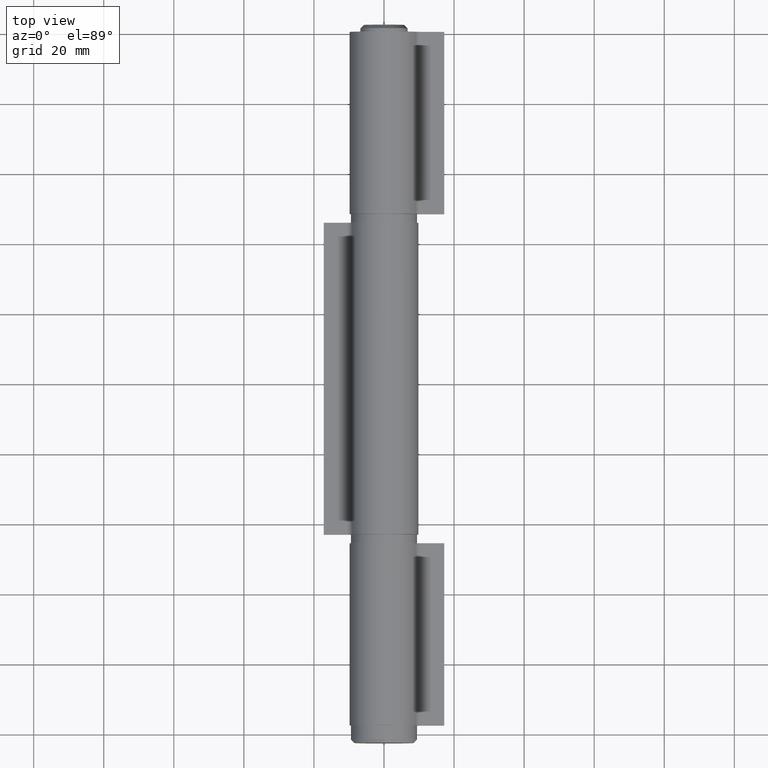
[diagram: clean part render]
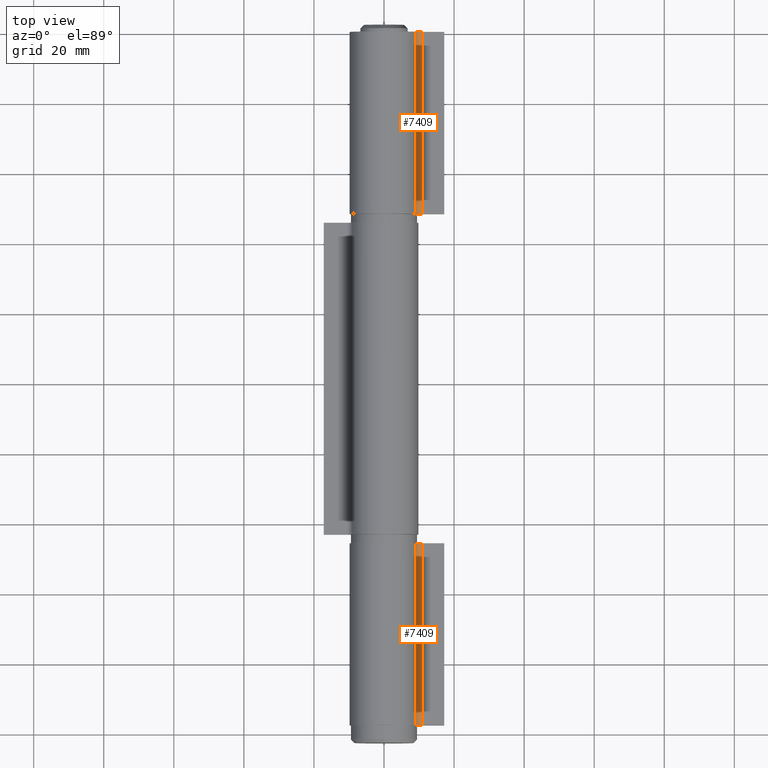
[diagram: same view with one multi-face feature highlighted, each face labeled with its STEP entity id]
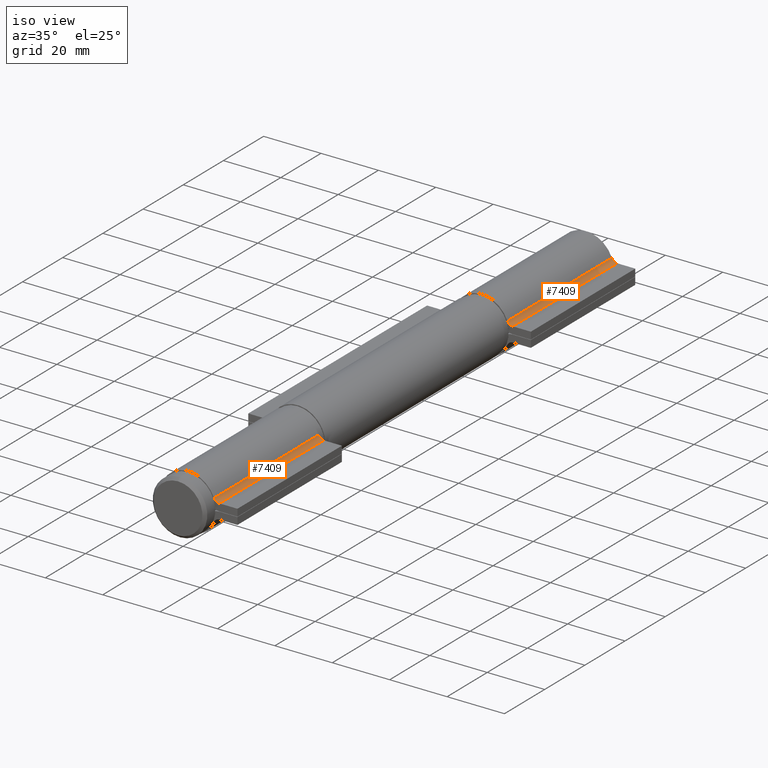
[diagram: same view with one multi-face feature highlighted, each face labeled with its STEP entity id]
A machine part, top view. The highlighted faces form ONE feature: a constant-radius fillet chain: 2 tangent blend faces with common blend radius 2 mm. The faces share edges in the B-rep.
A second angle (iso view) of the same feature is appended — it is thin or edge-on in the first view.
Their STEP definitions:
[1] entity #7409 (Cylinder):
#447 = CARTESIAN_POINT ( 'NONE',  ( 2.550000000000019806, 25.99999999999999645, -10.88749282433755639 ) ) ;
#592 = VECTOR ( 'NONE', #1459, 1000.000000000000000 ) ;
#665 = CARTESIAN_POINT ( 'NONE',  ( 4.550000000000039790, 25.99999999999999645, -10.88749282433755639 ) ) ;
#755 = DIRECTION ( 'NONE',  ( 0.000000000000000000, -1.000000000000000000, 0.000000000000000000 ) ) ;
#1276 = ORIENTED_EDGE ( 'NONE', *, *, #6496, .F. ) ;
#1459 = DIRECTION ( 'NONE',  ( 0.000000000000000000, -1.000000000000000000, 0.000000000000000000 ) ) ;
#1664 = EDGE_CURVE ( 'NONE', #2493, #4926, #12130, .T. ) ;
#1739 = CYLINDRICAL_SURFACE ( 'NONE', #6244, 2.000000000000020872 ) ;
#2493 = VERTEX_POINT ( 'NONE', #7216 ) ;
#2812 = ORIENTED_EDGE ( 'NONE', *, *, #6285, .T. ) ;
#2835 = ORIENTED_EDGE ( 'NONE', *, *, #11607, .F. ) ;
#3383 = VERTEX_POINT ( 'NONE', #6987 ) ;
#3668 = DIRECTION ( 'NONE',  ( 0.000000000000000000, 0.000000000000000000, -1.000000000000000000 ) ) ;
#3730 = VECTOR ( 'NONE', #5978, 1000.000000000000000 ) ;
#4179 = CIRCLE ( 'NONE', #7264, 2.000000000000020872 ) ;
#4193 = LINE ( 'NONE', #11679, #3730 ) ;
#4926 = VERTEX_POINT ( 'NONE', #7020 ) ;
#5050 = EDGE_LOOP ( 'NONE', ( #8351, #2835, #1276, #2812 ) ) ;
#5978 = DIRECTION ( 'NONE',  ( 0.000000000000000000, -1.000000000000000000, 0.000000000000000000 ) ) ;
#6186 = DIRECTION ( 'NONE',  ( 0.000000000000000000, -1.000000000000000000, 0.000000000000000000 ) ) ;
#6244 = AXIS2_PLACEMENT_3D ( 'NONE', #665, #6186, #8406 ) ;
#6285 = EDGE_CURVE ( 'NONE', #9916, #2493, #4193, .T. ) ;
#6341 = DIRECTION ( 'NONE',  ( 0.000000000000000000, -1.000000000000000000, 0.000000000000000000 ) ) ;
#6496 = EDGE_CURVE ( 'NONE', #9916, #3383, #4179, .T. ) ;
#6550 = AXIS2_PLACEMENT_3D ( 'NONE', #7510, #755, #3668 ) ;
#6894 = FACE_OUTER_BOUND ( 'NONE', #5050, .T. ) ;
#6987 = CARTESIAN_POINT ( 'NONE',  ( 2.550000000000019806, 25.99999999999999645, -10.88749282433755639 ) ) ;
#7020 = CARTESIAN_POINT ( 'NONE',  ( 2.550000000000019806, -25.99999999999999645, -10.88749282433755639 ) ) ;
#7216 = CARTESIAN_POINT ( 'NONE',  ( 3.778813559322075299, -25.99999999999999645, -9.042155057500695037 ) ) ;
#7264 = AXIS2_PLACEMENT_3D ( 'NONE', #11216, #6341, #12289 ) ;
#7384 = LINE ( 'NONE', #447, #592 ) ;
#7409 = ADVANCED_FACE ( 'NONE', ( #6894 ), #1739, .F. ) ;
#7510 = CARTESIAN_POINT ( 'NONE',  ( 4.550000000000039790, -25.99999999999999645, -10.88749282433755639 ) ) ;
#8351 = ORIENTED_EDGE ( 'NONE', *, *, #1664, .T. ) ;
#8406 = DIRECTION ( 'NONE',  ( 0.000000000000000000, 0.000000000000000000, -1.000000000000000000 ) ) ;
#9916 = VERTEX_POINT ( 'NONE', #10425 ) ;
#10425 = CARTESIAN_POINT ( 'NONE',  ( 3.778813559322075299, 25.99999999999999645, -9.042155057500695037 ) ) ;
#11216 = CARTESIAN_POINT ( 'NONE',  ( 4.550000000000039790, 25.99999999999999645, -10.88749282433755639 ) ) ;
#11607 = EDGE_CURVE ( 'NONE', #3383, #4926, #7384, .T. ) ;
#11679 = CARTESIAN_POINT ( 'NONE',  ( 3.778813559322075299, 25.99999999999999645, -9.042155057500695037 ) ) ;
#12130 = CIRCLE ( 'NONE', #6550, 2.000000000000020872 ) ;
#12289 = DIRECTION ( 'NONE',  ( 0.000000000000000000, 0.000000000000000000, -1.000000000000000000 ) ) ;
[2] entity #7409 (Cylinder):
#447 = CARTESIAN_POINT ( 'NONE',  ( 2.550000000000019806, 25.99999999999999645, -10.88749282433755639 ) ) ;
#592 = VECTOR ( 'NONE', #1459, 1000.000000000000000 ) ;
#665 = CARTESIAN_POINT ( 'NONE',  ( 4.550000000000039790, 25.99999999999999645, -10.88749282433755639 ) ) ;
#755 = DIRECTION ( 'NONE',  ( 0.000000000000000000, -1.000000000000000000, 0.000000000000000000 ) ) ;
#1276 = ORIENTED_EDGE ( 'NONE', *, *, #6496, .F. ) ;
#1459 = DIRECTION ( 'NONE',  ( 0.000000000000000000, -1.000000000000000000, 0.000000000000000000 ) ) ;
#1664 = EDGE_CURVE ( 'NONE', #2493, #4926, #12130, .T. ) ;
#1739 = CYLINDRICAL_SURFACE ( 'NONE', #6244, 2.000000000000020872 ) ;
#2493 = VERTEX_POINT ( 'NONE', #7216 ) ;
#2812 = ORIENTED_EDGE ( 'NONE', *, *, #6285, .T. ) ;
#2835 = ORIENTED_EDGE ( 'NONE', *, *, #11607, .F. ) ;
#3383 = VERTEX_POINT ( 'NONE', #6987 ) ;
#3668 = DIRECTION ( 'NONE',  ( 0.000000000000000000, 0.000000000000000000, -1.000000000000000000 ) ) ;
#3730 = VECTOR ( 'NONE', #5978, 1000.000000000000000 ) ;
#4179 = CIRCLE ( 'NONE', #7264, 2.000000000000020872 ) ;
#4193 = LINE ( 'NONE', #11679, #3730 ) ;
#4926 = VERTEX_POINT ( 'NONE', #7020 ) ;
#5050 = EDGE_LOOP ( 'NONE', ( #8351, #2835, #1276, #2812 ) ) ;
#5978 = DIRECTION ( 'NONE',  ( 0.000000000000000000, -1.000000000000000000, 0.000000000000000000 ) ) ;
#6186 = DIRECTION ( 'NONE',  ( 0.000000000000000000, -1.000000000000000000, 0.000000000000000000 ) ) ;
#6244 = AXIS2_PLACEMENT_3D ( 'NONE', #665, #6186, #8406 ) ;
#6285 = EDGE_CURVE ( 'NONE', #9916, #2493, #4193, .T. ) ;
#6341 = DIRECTION ( 'NONE',  ( 0.000000000000000000, -1.000000000000000000, 0.000000000000000000 ) ) ;
#6496 = EDGE_CURVE ( 'NONE', #9916, #3383, #4179, .T. ) ;
#6550 = AXIS2_PLACEMENT_3D ( 'NONE', #7510, #755, #3668 ) ;
#6894 = FACE_OUTER_BOUND ( 'NONE', #5050, .T. ) ;
#6987 = CARTESIAN_POINT ( 'NONE',  ( 2.550000000000019806, 25.99999999999999645, -10.88749282433755639 ) ) ;
#7020 = CARTESIAN_POINT ( 'NONE',  ( 2.550000000000019806, -25.99999999999999645, -10.88749282433755639 ) ) ;
#7216 = CARTESIAN_POINT ( 'NONE',  ( 3.778813559322075299, -25.99999999999999645, -9.042155057500695037 ) ) ;
#7264 = AXIS2_PLACEMENT_3D ( 'NONE', #11216, #6341, #12289 ) ;
#7384 = LINE ( 'NONE', #447, #592 ) ;
#7409 = ADVANCED_FACE ( 'NONE', ( #6894 ), #1739, .F. ) ;
#7510 = CARTESIAN_POINT ( 'NONE',  ( 4.550000000000039790, -25.99999999999999645, -10.88749282433755639 ) ) ;
#8351 = ORIENTED_EDGE ( 'NONE', *, *, #1664, .T. ) ;
#8406 = DIRECTION ( 'NONE',  ( 0.000000000000000000, 0.000000000000000000, -1.000000000000000000 ) ) ;
#9916 = VERTEX_POINT ( 'NONE', #10425 ) ;
#10425 = CARTESIAN_POINT ( 'NONE',  ( 3.778813559322075299, 25.99999999999999645, -9.042155057500695037 ) ) ;
#11216 = CARTESIAN_POINT ( 'NONE',  ( 4.550000000000039790, 25.99999999999999645, -10.88749282433755639 ) ) ;
#11607 = EDGE_CURVE ( 'NONE', #3383, #4926, #7384, .T. ) ;
#11679 = CARTESIAN_POINT ( 'NONE',  ( 3.778813559322075299, 25.99999999999999645, -9.042155057500695037 ) ) ;
#12130 = CIRCLE ( 'NONE', #6550, 2.000000000000020872 ) ;
#12289 = DIRECTION ( 'NONE',  ( 0.000000000000000000, 0.000000000000000000, -1.000000000000000000 ) ) ;